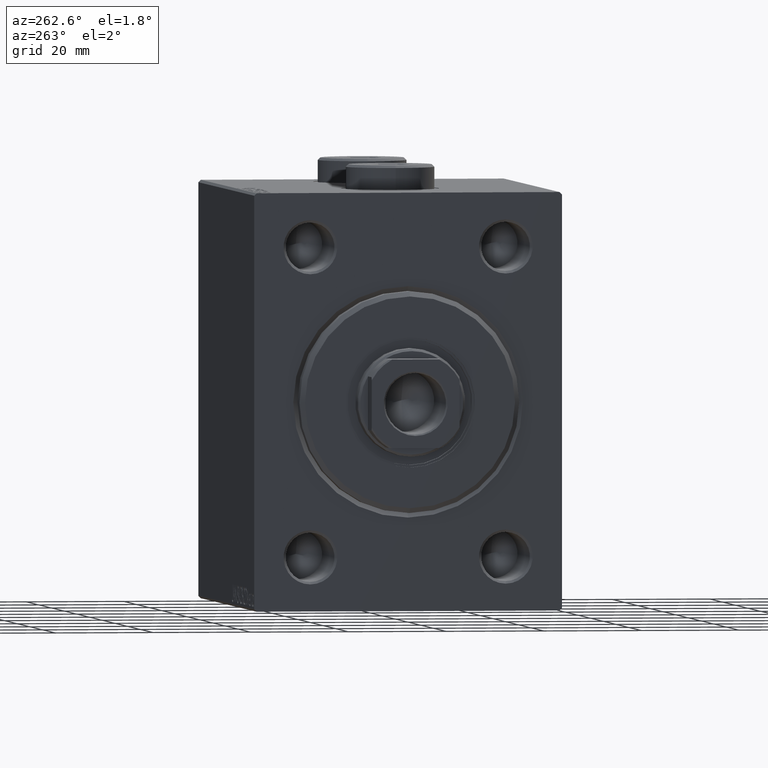
[diagram: clean part render]
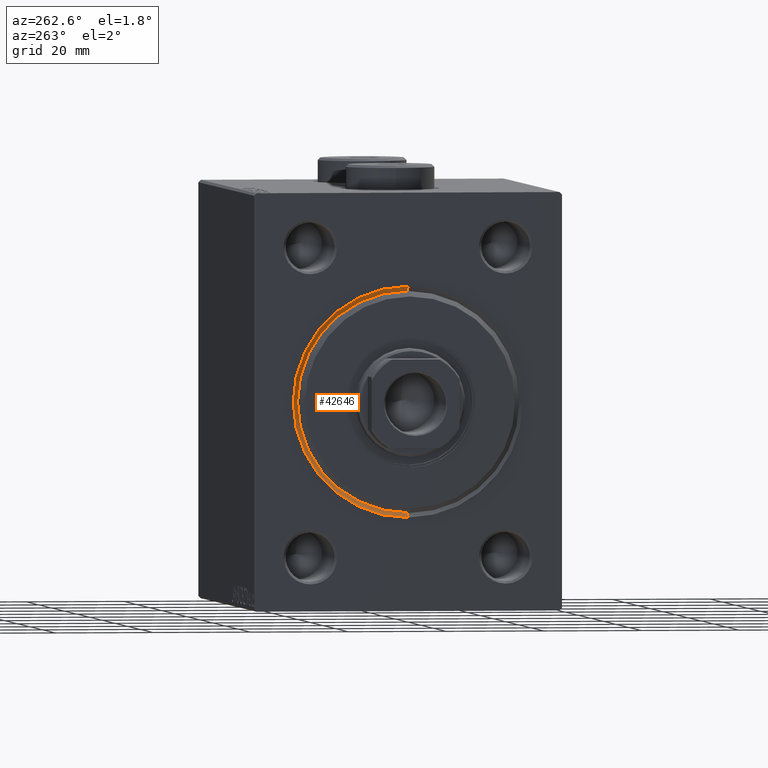
[diagram: same view with one face highlighted and labeled with its STEP entity id]
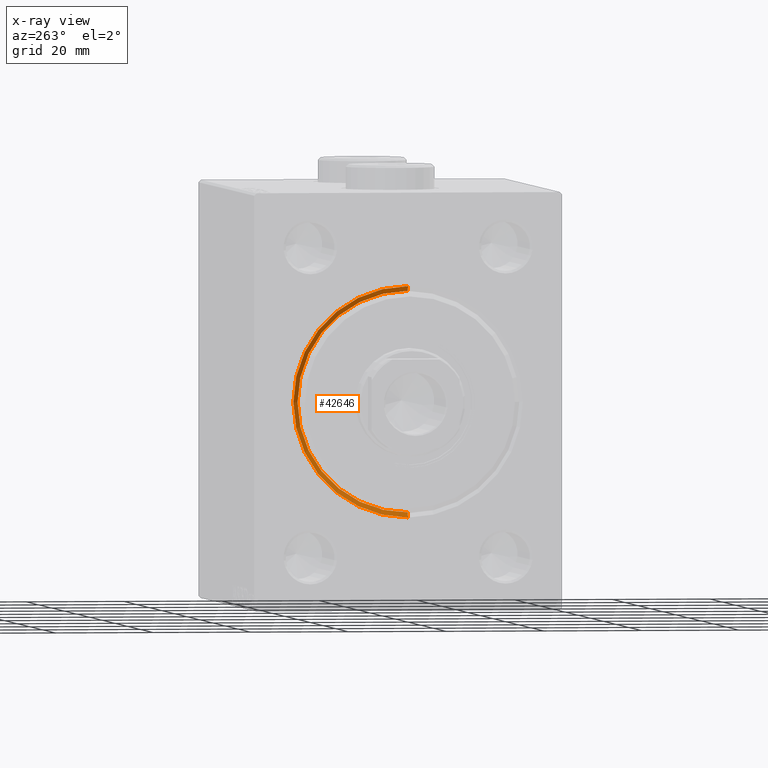
[diagram: x-ray of the same camera — body ghosted, the highlighted face saturated]
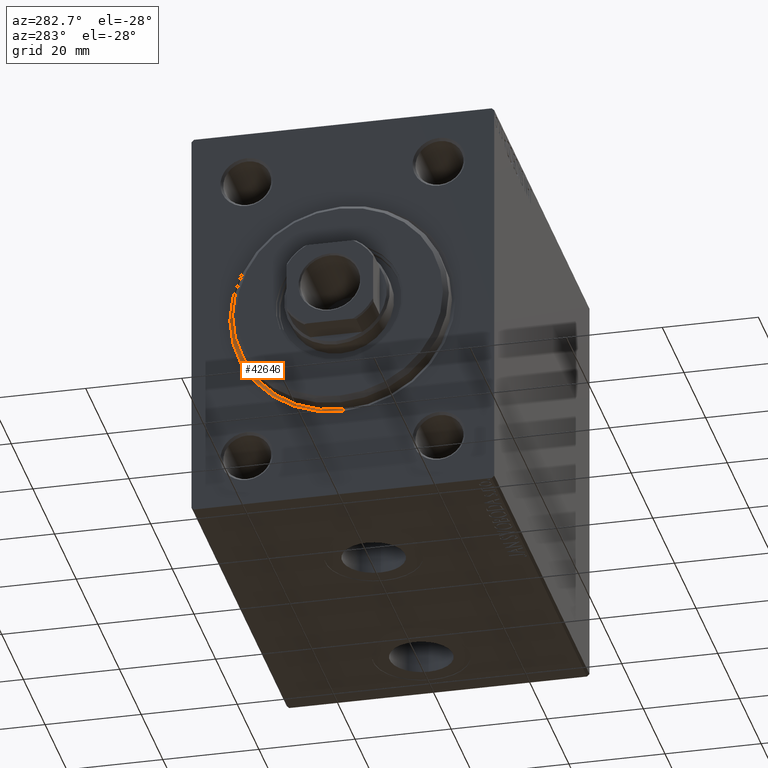
[diagram: same view with one face highlighted and labeled with its STEP entity id]
A machine part, auxiliary view. The second image highlights one B-rep face of the part: STEP entity #42646.
The next image is the same camera in x-ray: the body ghosted, the highlighted face saturated — about 0% of this face is hidden behind the body in this view.
A second angle (auxiliary view) of the same face is appended — the face is thin or edge-on in the first view.
In plain terms, the highlighted conical surface has half-angle 45 deg.
Its self-contained STEP definition (entity closure, byte-faithful):
#744 = CIRCLE ( 'NONE', #44175, 23.49999999999998934 ) ;
#1663 = CARTESIAN_POINT ( 'NONE',  ( 0.000000000000000000, 0.000000000000000000, 0.000000000000000000 ) ) ;
#1860 = LINE ( 'NONE', #16370, #27049 ) ;
#2437 = CARTESIAN_POINT ( 'NONE',  ( 0.000000000000000000, 2.877919977996279137E-15, -23.49999999999998934 ) ) ;
#2828 = CIRCLE ( 'NONE', #19786, 22.50000000000000355 ) ;
#3242 = ORIENTED_EDGE ( 'NONE', *, *, #36259, .T. ) ;
#4550 = VECTOR ( 'NONE', #37547, 1000.000000000000114 ) ;
#4662 = DIRECTION ( 'NONE',  ( 0.000000000000000000, 0.000000000000000000, -1.000000000000000000 ) ) ;
#6600 = CONICAL_SURFACE ( 'NONE', #27963, 22.50000000000000355, 0.7853981633974482790 ) ;
#9064 = EDGE_LOOP ( 'NONE', ( #43836, #16911, #3242, #38689 ) ) ;
#9442 = DIRECTION ( 'NONE',  ( -0.7071067811865474617, 0.000000000000000000, 0.7071067811865474617 ) ) ;
#10257 = VERTEX_POINT ( 'NONE', #16223 ) ;
#10708 = CARTESIAN_POINT ( 'NONE',  ( 0.9999999999999870104, 0.000000000000000000, 0.000000000000000000 ) ) ;
#12263 = DIRECTION ( 'NONE',  ( 1.000000000000000000, 0.000000000000000000, 0.000000000000000000 ) ) ;
#13845 = CARTESIAN_POINT ( 'NONE',  ( 0.9999999999999870104, 0.000000000000000000, 0.000000000000000000 ) ) ;
#16223 = CARTESIAN_POINT ( 'NONE',  ( 0.000000000000000000, 0.000000000000000000, 23.49999999999998934 ) ) ;
#16370 = CARTESIAN_POINT ( 'NONE',  ( 0.9999999999999870104, 0.000000000000000000, 22.50000000000000355 ) ) ;
#16911 = ORIENTED_EDGE ( 'NONE', *, *, #39738, .F. ) ;
#17542 = DIRECTION ( 'NONE',  ( 0.000000000000000000, 0.000000000000000000, 1.000000000000000000 ) ) ;
#18227 = DIRECTION ( 'NONE',  ( -1.000000000000000000, 0.000000000000000000, 0.000000000000000000 ) ) ;
#19786 = AXIS2_PLACEMENT_3D ( 'NONE', #10708, #24779, #38823 ) ;
#20104 = VERTEX_POINT ( 'NONE', #28286 ) ;
#20271 = LINE ( 'NONE', #30851, #4550 ) ;
#21216 = EDGE_CURVE ( 'NONE', #31059, #40367, #20271, .T. ) ;
#24696 = FACE_OUTER_BOUND ( 'NONE', #9064, .T. ) ;
#24779 = DIRECTION ( 'NONE',  ( -1.000000000000000000, 0.000000000000000000, 0.000000000000000000 ) ) ;
#26124 = CARTESIAN_POINT ( 'NONE',  ( 0.9999999999999870104, 2.755455298081545172E-15, -22.50000000000000355 ) ) ;
#27049 = VECTOR ( 'NONE', #9442, 1000.000000000000114 ) ;
#27963 = AXIS2_PLACEMENT_3D ( 'NONE', #13845, #18227, #17542 ) ;
#28286 = CARTESIAN_POINT ( 'NONE',  ( 0.9999999999999870104, 0.000000000000000000, 22.50000000000000355 ) ) ;
#30851 = CARTESIAN_POINT ( 'NONE',  ( 0.9999999999999870104, 2.755455298081545172E-15, -22.50000000000000355 ) ) ;
#31059 = VERTEX_POINT ( 'NONE', #26124 ) ;
#36259 = EDGE_CURVE ( 'NONE', #20104, #10257, #1860, .T. ) ;
#37547 = DIRECTION ( 'NONE',  ( -0.7071067811865474617, 8.659560562354932858E-17, -0.7071067811865474617 ) ) ;
#38689 = ORIENTED_EDGE ( 'NONE', *, *, #44012, .F. ) ;
#38823 = DIRECTION ( 'NONE',  ( 0.000000000000000000, 0.000000000000000000, -1.000000000000000000 ) ) ;
#39738 = EDGE_CURVE ( 'NONE', #20104, #31059, #2828, .T. ) ;
#40367 = VERTEX_POINT ( 'NONE', #2437 ) ;
#42646 = ADVANCED_FACE ( 'NONE', ( #24696 ), #6600, .F. ) ;
#43836 = ORIENTED_EDGE ( 'NONE', *, *, #21216, .F. ) ;
#44012 = EDGE_CURVE ( 'NONE', #40367, #10257, #744, .T. ) ;
#44175 = AXIS2_PLACEMENT_3D ( 'NONE', #1663, #12263, #4662 ) ;